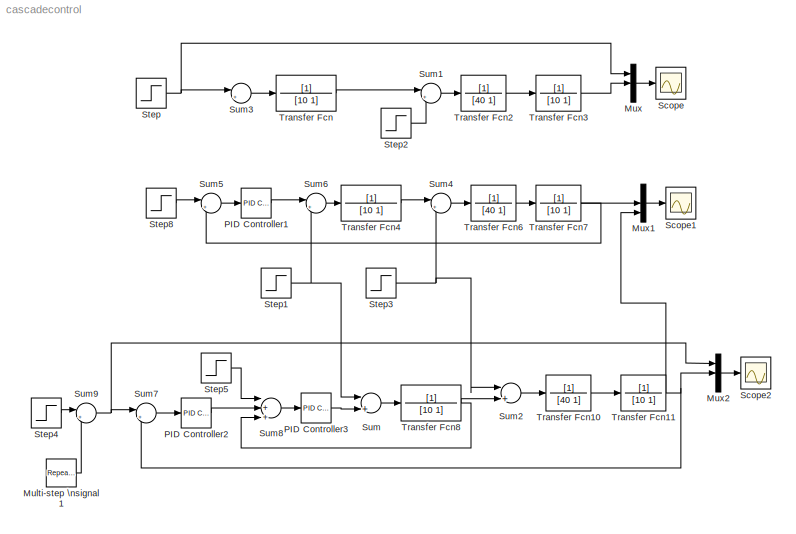
MODEL cascadecontrol
KIND model
BLOCK [Reference] Multi-step \nsignal 1  REF=simulink/Sources/Repeating\nSequence\nInterpolated
  LockScale = off
  LookUpMeth = Use Input Below
  OutDataType = float('double')
  OutScaling = 2^-10
  OutValues = [1 2 1.5 1 1.5].'
  OutputDataTypeScalingMode = Specify via dialog
  Ports = [0, 1]
  ShowPortLabels = on
  SourceBlock = simulink/Sources/Repeating\nSequence\nInterpolated
  SourceType = Repeating Sequence Interpolated
  TimeValues = [0 28 55 80 100]*10.'
  tsamp = 1
BLOCK [Mux] Mux
  DisplayOption = bar
  Inputs = 3
  Ports = [3, 1]
BLOCK [Mux] Mux1
  DisplayOption = bar
  Inputs = 3
  Ports = [3, 1]
BLOCK [Mux] Mux2
  DisplayOption = bar
  Inputs = 3
  Ports = [3, 1]
BLOCK [Reference] PID Controller1  REF=simulink_extras/Additional\nLinear/PID Controller
  D = 20
  I = 0.05
  P = 4
  Ports = [1, 1]
  ShowPortLabels = on
  SourceBlock = simulink_extras/Additional\nLinear/PID Controller
  SourceType = PID Controller
BLOCK [Reference] PID Controller2  REF=simulink_extras/Additional\nLinear/PID Controller
  D = 45
  I = 0.15
  P = 10
  Ports = [1, 1]
  ShowPortLabels = on
  SourceBlock = simulink_extras/Additional\nLinear/PID Controller
  SourceType = PID Controller
BLOCK [Reference] PID Controller3  REF=simulink_extras/Additional\nLinear/PID Controller
  D = 0
  I = 0
  P = 1.5
  Ports = [1, 1]
  ShowPortLabels = on
  SourceBlock = simulink_extras/Additional\nLinear/PID Controller
  SourceType = PID Controller
BLOCK [Scope] Scope
  DataFormat = StructureWithTime
  NumInputPorts = 1
  Ports = [1]
BLOCK [Scope] Scope1
  DataFormat = StructureWithTime
  NumInputPorts = 1
  Ports = [1]
  SaveName = ScopeData1
  ZoomMode = yonly
BLOCK [Scope] Scope2
  DataFormat = StructureWithTime
  NumInputPorts = 1
  Ports = [1]
  SaveName = ScopeData2
BLOCK [Step] Step
  SampleTime = 0
  Time = 0
BLOCK [Step] Step1
  After = 0
  SampleTime = 0
  Time = 0
BLOCK [Step] Step2
  After = 0
  SampleTime = 0
  Time = 0
BLOCK [Step] Step3
  After = 0
  SampleTime = 0
  Time = 0
BLOCK [Step] Step4
  After = 0
  SampleTime = 0
  Time = 0
BLOCK [Step] Step5
  After = 0
  SampleTime = 0
  Time = 0
BLOCK [Step] Step8
  After = 0
  SampleTime = 0
  Time = 0
BLOCK [Sum] Sum
  InputSameDT = off
  Inputs = |++
  OutDataTypeMode = Inherit via internal rule
  Ports = [2, 1]
  SaturateOnIntegerOverflow = off
BLOCK [Sum] Sum1
  IconShape = round
  InputSameDT = off
  Inputs = |++
  OutDataTypeMode = Inherit via internal rule
  Ports = [2, 1]
  SaturateOnIntegerOverflow = off
BLOCK [Sum] Sum2
  InputSameDT = off
  Inputs = |++
  OutDataTypeMode = Inherit via internal rule
  Ports = [2, 1]
  SaturateOnIntegerOverflow = off
BLOCK [Sum] Sum3
  IconShape = round
  InputSameDT = off
  Inputs = |++
  OutDataTypeMode = Inherit via internal rule
  Ports = [2, 1]
  SaturateOnIntegerOverflow = off
BLOCK [Sum] Sum4
  IconShape = round
  InputSameDT = off
  Inputs = |++
  OutDataTypeMode = Inherit via internal rule
  Ports = [2, 1]
  SaturateOnIntegerOverflow = off
BLOCK [Sum] Sum5
  IconShape = round
  InputSameDT = off
  Inputs = |+-
  OutDataTypeMode = Inherit via internal rule
  Ports = [2, 1]
  SaturateOnIntegerOverflow = off
BLOCK [Sum] Sum6
  IconShape = round
  InputSameDT = off
  Inputs = |++
  OutDataTypeMode = Inherit via internal rule
  Ports = [2, 1]
  SaturateOnIntegerOverflow = off
BLOCK [Sum] Sum7
  IconShape = round
  InputSameDT = off
  Inputs = |+-
  OutDataTypeMode = Inherit via internal rule
  Ports = [2, 1]
  SaturateOnIntegerOverflow = off
BLOCK [Sum] Sum8
  InputSameDT = off
  Inputs = |++-
  OutDataTypeMode = Inherit via internal rule
  Ports = [3, 1]
  SaturateOnIntegerOverflow = off
BLOCK [Sum] Sum9
  IconShape = round
  InputSameDT = off
  Inputs = |++
  OutDataTypeMode = Inherit via internal rule
  Ports = [2, 1]
  SaturateOnIntegerOverflow = off
BLOCK [TransferFcn] Transfer Fcn
  Denominator = [10 1]
BLOCK [TransferFcn] Transfer Fcn10
  Denominator = [40 1]
BLOCK [TransferFcn] Transfer Fcn11
  Denominator = [10 1]
BLOCK [TransferFcn] Transfer Fcn2
  Denominator = [40 1]
BLOCK [TransferFcn] Transfer Fcn3
  Denominator = [10 1]
BLOCK [TransferFcn] Transfer Fcn4
  Denominator = [10 1]
BLOCK [TransferFcn] Transfer Fcn6
  Denominator = [40 1]
BLOCK [TransferFcn] Transfer Fcn7
  Denominator = [10 1]
BLOCK [TransferFcn] Transfer Fcn8
  Denominator = [10 1]
LINE Multi-step \nsignal 1:1 -> Sum9:2
LINE Mux1:1 -> Scope1:1
LINE Mux2:1 -> Scope2:1
LINE Mux:1 -> Scope:1
LINE PID Controller1:1 -> Sum6:1
LINE PID Controller2:1 -> Sum8:2
LINE PID Controller3:1 -> Sum:2
NET Step1:1 -> Sum6:2, Sum:1
LINE Step2:1 -> Sum1:2
NET Step3:1 -> Sum2:1, Sum4:2
LINE Step4:1 -> Sum9:1
LINE Step5:1 -> Sum8:1
LINE Step8:1 -> Sum5:1
NET Step:1 -> Mux:1, Sum3:1
LINE Sum1:1 -> Transfer Fcn2:1
LINE Sum2:1 -> Transfer Fcn10:1
LINE Sum3:1 -> Transfer Fcn:1
LINE Sum4:1 -> Transfer Fcn6:1
LINE Sum5:1 -> PID Controller1:1
LINE Sum6:1 -> Transfer Fcn4:1
LINE Sum7:1 -> PID Controller2:1
LINE Sum8:1 -> PID Controller3:1
NET Sum9:1 -> Mux2:1, Sum7:1
LINE Sum:1 -> Transfer Fcn8:1
LINE Transfer Fcn10:1 -> Transfer Fcn11:1
NET Transfer Fcn11:1 -> Mux1:3, Mux2:2, Sum7:2
LINE Transfer Fcn2:1 -> Transfer Fcn3:1
LINE Transfer Fcn3:1 -> Mux:2
LINE Transfer Fcn4:1 -> Sum4:1
LINE Transfer Fcn6:1 -> Transfer Fcn7:1
NET Transfer Fcn7:1 -> Mux1:2, Sum5:2
NET Transfer Fcn8:1 -> Sum2:2, Sum8:3
LINE Transfer Fcn:1 -> Sum1:1
note: NET lines group one-source signal fan-out (src -> all destinations, sorted); 1:1 wires keep LINE
